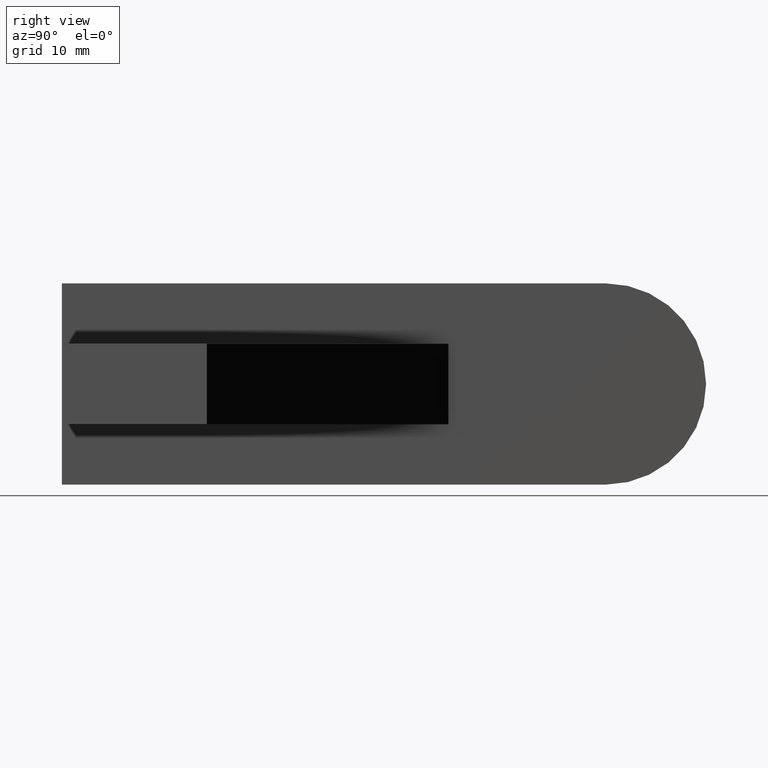
[diagram: clean part render]
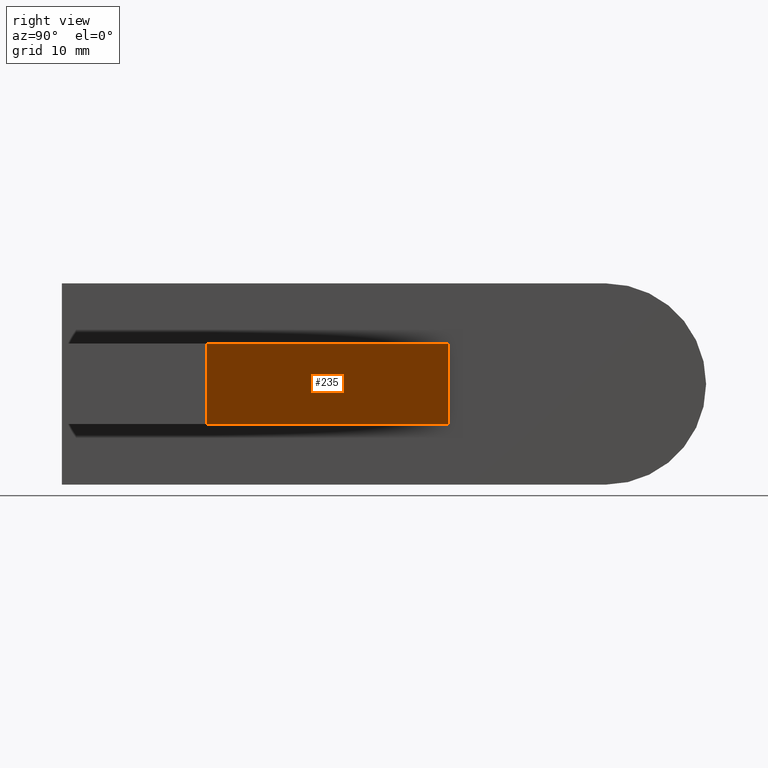
[diagram: same view with one face highlighted and labeled with its STEP entity id]
A machine part, right view. The second image highlights one B-rep face of the part: STEP entity #235.
In plain terms, the highlighted planar face has unit normal (0.7682, 0.6402, 0).
Its self-contained STEP definition (entity closure, byte-faithful):
#28=FACE_OUTER_BOUND('',#42,.T.);
#42=EDGE_LOOP('',(#196,#197,#198,#199));
#54=LINE('',#351,#82);
#66=LINE('',#378,#94);
#71=LINE('',#389,#99);
#72=LINE('',#390,#100);
#82=VECTOR('',#286,10.);
#94=VECTOR('',#312,10.);
#99=VECTOR('',#323,10.);
#100=VECTOR('',#324,10.);
#108=VERTEX_POINT('',#344);
#111=VERTEX_POINT('',#349);
#117=VERTEX_POINT('',#371);
#122=VERTEX_POINT('',#388);
#131=EDGE_CURVE('',#111,#108,#54,.T.);
#144=EDGE_CURVE('',#117,#108,#66,.T.);
#149=EDGE_CURVE('',#111,#122,#71,.T.);
#150=EDGE_CURVE('',#122,#117,#72,.T.);
#196=ORIENTED_EDGE('',*,*,#149,.T.);
#197=ORIENTED_EDGE('',*,*,#150,.T.);
#198=ORIENTED_EDGE('',*,*,#144,.T.);
#199=ORIENTED_EDGE('',*,*,#131,.F.);
#222=PLANE('',#270);
#235=ADVANCED_FACE('',(#28),#222,.T.);
#270=AXIS2_PLACEMENT_3D('',#387,#321,#322);
#286=DIRECTION('',(0.,0.,-1.));
#312=DIRECTION('',(-0.64018439966448,0.768221279597376,0.));
#321=DIRECTION('center_axis',(0.768221279597376,0.64018439966448,0.));
#322=DIRECTION('ref_axis',(0.,0.,-1.));
#323=DIRECTION('',(0.64018439966448,-0.768221279597376,0.));
#324=DIRECTION('',(0.,0.,-1.));
#344=CARTESIAN_POINT('',(-25.,48.,-5.));
#349=CARTESIAN_POINT('',(-25.,48.,5.));
#351=CARTESIAN_POINT('',(-25.,48.,0.));
#371=CARTESIAN_POINT('',(-1.11022302462516E-15,18.,-5.));
#378=CARTESIAN_POINT('',(-25.,48.,-5.));
#387=CARTESIAN_POINT('Origin',(-25.,48.,0.));
#388=CARTESIAN_POINT('',(-1.11022302462516E-15,18.,5.));
#389=CARTESIAN_POINT('',(-25.,48.,5.));
#390=CARTESIAN_POINT('',(-1.11022302462516E-15,18.,0.));